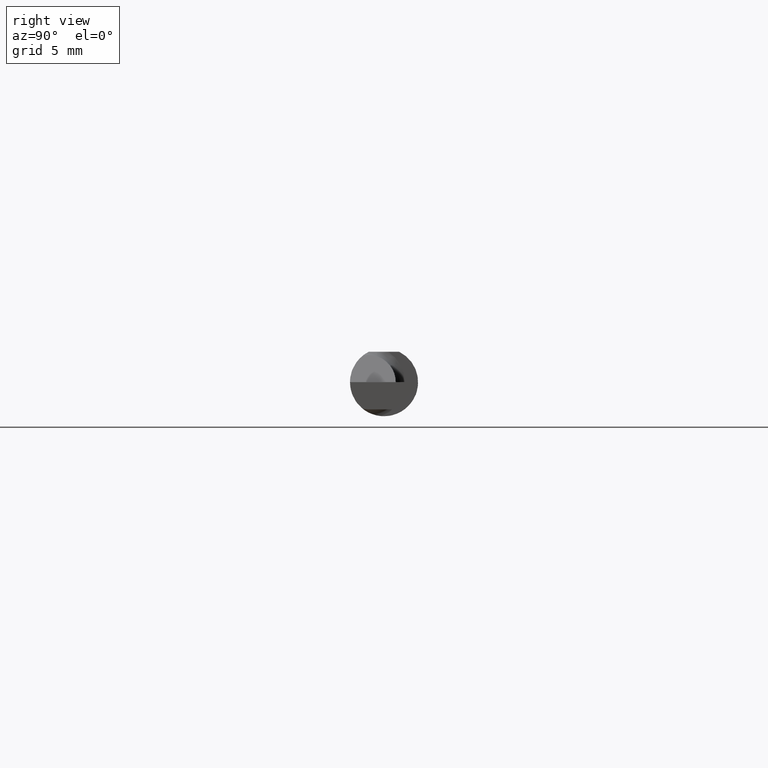
[diagram: clean part render]
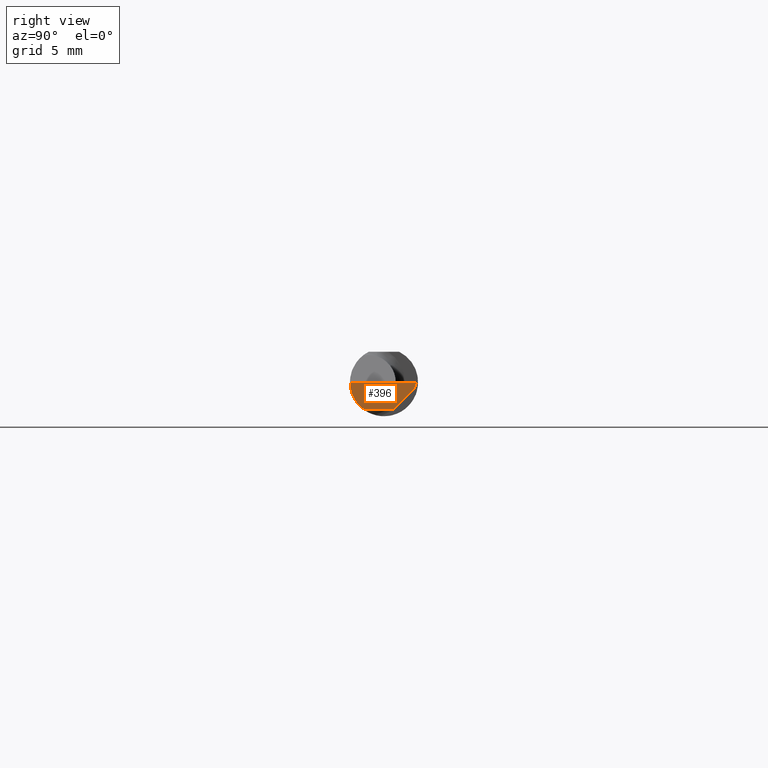
[diagram: same view with one face highlighted and labeled with its STEP entity id]
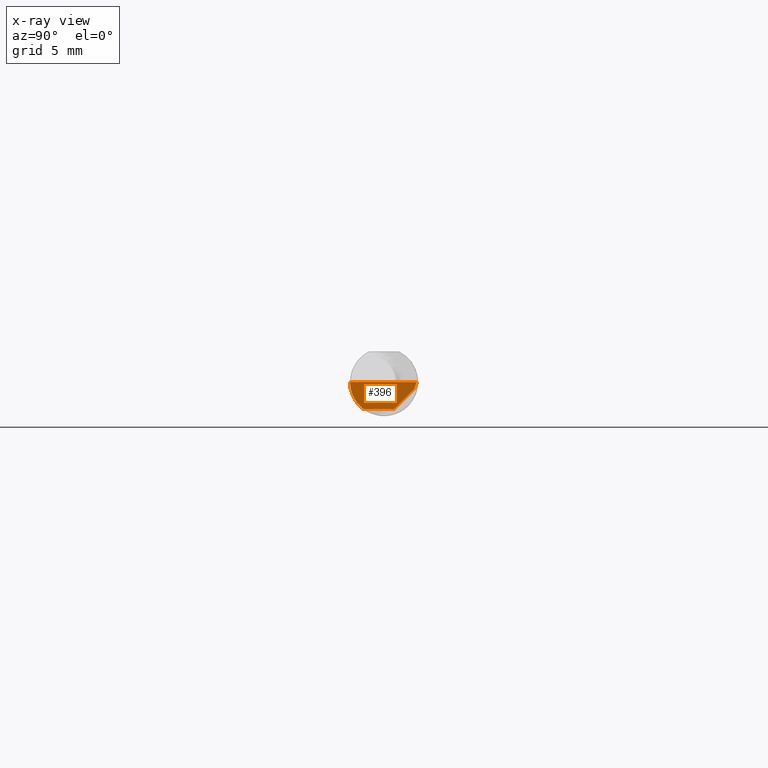
[diagram: x-ray of the same camera — body ghosted, the highlighted face saturated]
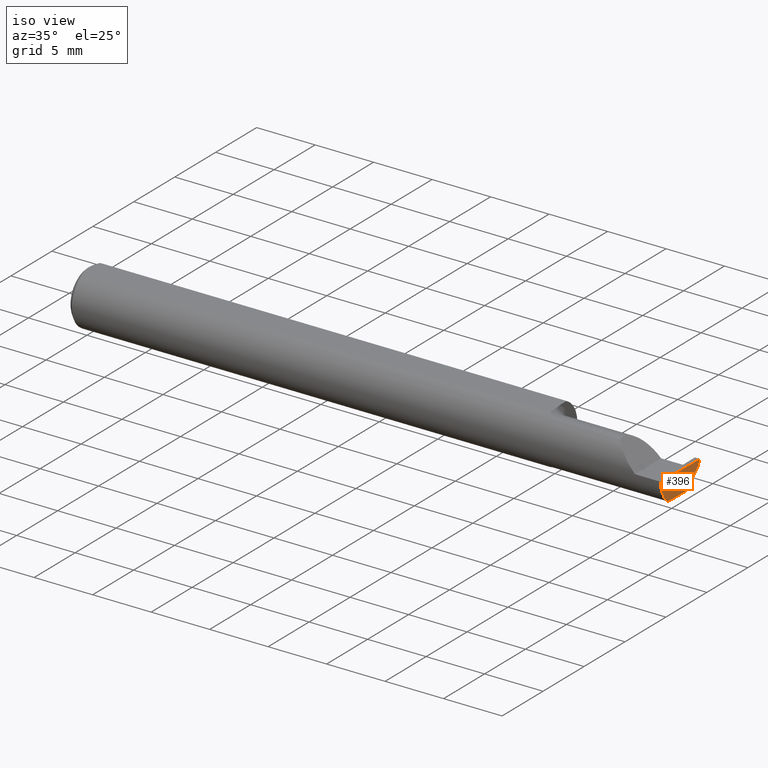
[diagram: same view with one face highlighted and labeled with its STEP entity id]
A machine part, right view. The second image highlights one B-rep face of the part: STEP entity #396.
The next image is the same camera in x-ray: the body ghosted, the highlighted face saturated — about 0% of this face is hidden behind the body in this view.
A second angle (iso view) of the same face is appended — the face is thin or edge-on in the first view.
In plain terms, the highlighted planar face has unit normal (-0.9995, 0.0174, 0.0262).
Its self-contained STEP definition (entity closure, byte-faithful):
#13 = CARTESIAN_POINT ( 'NONE',  ( 1.995546448166315878, -0.05323839212197382237, -0.07444895739054079031 ) ) ;
#25 = DIRECTION ( 'NONE',  ( 0.01744642479411314534, 0.9998477995484629233, -2.135106780035503491E-18 ) ) ;
#37 = CARTESIAN_POINT ( 'NONE',  ( 1.999906583493247902, 0.08920513411407893223, -0.002870745427926570548 ) ) ;
#85 = DIRECTION ( 'NONE',  ( 0.02617296143184116158, -0.0004568507411563393905, 0.9996573249755575929 ) ) ;
#87 = EDGE_CURVE ( 'NONE', #639, #136, #276, .T. ) ;
#107 = CARTESIAN_POINT ( 'NONE',  ( 1.995715029210241465, -0.04275000000000006573, -0.07500000000000002498 ) ) ;
#128 = CARTESIAN_POINT ( 'NONE',  ( 1.995715029210241465, -0.04275000000000006573, -0.07500000000000002498 ) ) ;
#136 = VERTEX_POINT ( 'NONE', #128 ) ;
#148 = VECTOR ( 'NONE', #591, 39.37007874015748854 ) ;
#167 = CARTESIAN_POINT ( 'NONE',  ( 1.995485408891350287, -0.05838157894736844405, -0.07335293954308980124 ) ) ;
#172 =( BOUNDED_CURVE ( )  B_SPLINE_CURVE ( 3, ( #246, #558, #300, #503 ),
 .UNSPECIFIED., .F., .T. ) 
 B_SPLINE_CURVE_WITH_KNOTS ( ( 4, 4 ),
 ( 0.08452019423454062985, 0.9826237902196911511 ),
 .UNSPECIFIED. ) 
 CURVE ( )  GEOMETRIC_REPRESENTATION_ITEM ( )  RATIONAL_B_SPLINE_CURVE ( ( 1.000000000000000000, 0.9339060884622309988, 0.9339060884622309988, 1.000000000000000000 ) ) 
 REPRESENTATION_ITEM ( '' )  );
#182 = CARTESIAN_POINT ( 'NONE',  ( 1.996681322863967711, -0.09994209213532713465, 4.064207332045267881E-19 ) ) ;
#186 = CARTESIAN_POINT ( 'NONE',  ( 1.999381723781206599, 0.08333456554894212720, -0.01900000000000000300 ) ) ;
#244 = EDGE_LOOP ( 'NONE', ( #282, #423, #286, #627, #509, #278, #615 ) ) ;
#246 = CARTESIAN_POINT ( 'NONE',  ( 1.995485408891350287, -0.05838157894736844405, -0.07335293954308980124 ) ) ;
#256 = DIRECTION ( 'NONE',  ( -0.03056411404777942264, -0.3418603543644915255, -0.9392536042231929283 ) ) ;
#266 = LINE ( 'NONE', #37, #646 ) ;
#268 = DIRECTION ( 'NONE',  ( -0.9995051766793262571, 0.01744044634007060890, 0.02617694830739122208 ) ) ;
#275 = VECTOR ( 'NONE', #25, 39.37007874015748854 ) ;
#276 = LINE ( 'NONE', #281, #148 ) ;
#278 = ORIENTED_EDGE ( 'NONE', *, *, #664, .F. ) ;
#280 = CARTESIAN_POINT ( 'NONE',  ( 2.000000000000000444, 0.09024999999999998301, -3.388131789017201356E-17 ) ) ;
#281 = CARTESIAN_POINT ( 'NONE',  ( 1.997443266634556291, 0.05629461264644371882, -0.07500000000000002498 ) ) ;
#282 = ORIENTED_EDGE ( 'NONE', *, *, #456, .T. ) ;
#286 = ORIENTED_EDGE ( 'NONE', *, *, #373, .F. ) ;
#287 = CARTESIAN_POINT ( 'NONE',  ( 1.994172072281005459, -0.09370431490906530603, -0.09996576130738767108 ) ) ;
#300 = CARTESIAN_POINT ( 'NONE',  ( 1.996027606133761179, -0.09373671316968848477, -0.02909498180803899575 ) ) ;
#347 = EDGE_CURVE ( 'NONE', #461, #597, #266, .T. ) ;
#371 =( BOUNDED_CURVE ( )  B_SPLINE_CURVE ( 3, ( #167, #13, #431, #107 ),
 .UNSPECIFIED., .F., .F. ) 
 B_SPLINE_CURVE_WITH_KNOTS ( ( 4, 4 ),
 ( 0.3777552489154321069, 0.5877155292608603476 ),
 .UNSPECIFIED. ) 
 CURVE ( )  GEOMETRIC_REPRESENTATION_ITEM ( )  RATIONAL_B_SPLINE_CURVE ( ( 1.000000000000000000, 0.9963297626697654730, 0.9963297626697654730, 1.000000000000000000 ) ) 
 REPRESENTATION_ITEM ( '' )  );
#373 = EDGE_CURVE ( 'NONE', #597, #639, #444, .T. ) ;
#375 = DIRECTION ( 'NONE',  ( 0.02618093032612054533, 0.000000000000000000, 0.9996572206948034500 ) ) ;
#380 = CARTESIAN_POINT ( 'NONE',  ( 1.996789369178486595, -0.09374999999634724135, 1.727064893179230389E-17 ) ) ;
#389 = CARTESIAN_POINT ( 'NONE',  ( 1.997382703856816377, 0.09029568507411561695, -0.09996573249755572044 ) ) ;
#396 = ADVANCED_FACE ( 'NONE', ( #492 ), #594, .F. ) ;
#409 = CARTESIAN_POINT ( 'NONE',  ( 1.996788247257474058, -0.09374999020988993015, -4.284443422834860931E-05 ) ) ;
#423 = ORIENTED_EDGE ( 'NONE', *, *, #87, .F. ) ;
#429 = CARTESIAN_POINT ( 'NONE',  ( 1.999287184445666998, 0.08116816941191071222, -0.02116639613703141104 ) ) ;
#431 = CARTESIAN_POINT ( 'NONE',  ( 1.995623270227810497, -0.04800867149029529324, -0.07499999999999998335 ) ) ;
#444 = LINE ( 'NONE', #429, #470 ) ;
#447 = AXIS2_PLACEMENT_3D ( 'NONE', #389, #268, #375 ) ;
#451 = LINE ( 'NONE', #182, #275 ) ;
#456 = EDGE_CURVE ( 'NONE', #643, #136, #371, .T. ) ;
#461 = VERTEX_POINT ( 'NONE', #280 ) ;
#470 = VECTOR ( 'NONE', #538, 39.37007874015748143 ) ;
#474 = VERTEX_POINT ( 'NONE', #380 ) ;
#492 = FACE_OUTER_BOUND ( 'NONE', #244, .T. ) ;
#502 = VERTEX_POINT ( 'NONE', #409 ) ;
#503 = CARTESIAN_POINT ( 'NONE',  ( 1.996788247257474058, -0.09374999020988993015, -4.284443422834860931E-05 ) ) ;
#509 = ORIENTED_EDGE ( 'NONE', *, *, #573, .F. ) ;
#538 = DIRECTION ( 'NONE',  ( -0.03084274406794415904, -0.7067703747110379853, -0.7067703747110360979 ) ) ;
#549 = LINE ( 'NONE', #287, #619 ) ;
#554 = CARTESIAN_POINT ( 'NONE',  ( 1.995485408891350287, -0.05838157894736844405, -0.07335293954308980124 ) ) ;
#558 = CARTESIAN_POINT ( 'NONE',  ( 1.995562592080699416, -0.08111288453585545344, -0.05526110136922310345 ) ) ;
#573 = EDGE_CURVE ( 'NONE', #474, #461, #451, .T. ) ;
#591 = DIRECTION ( 'NONE',  ( -0.01744642479411314534, -0.9998477995484629233, 0.000000000000000000 ) ) ;
#594 = PLANE ( 'NONE',  #447 ) ;
#597 = VERTEX_POINT ( 'NONE', #186 ) ;
#610 = CARTESIAN_POINT ( 'NONE',  ( 1.996937940439960757, 0.02733456554894195256, -0.07500000000000002498 ) ) ;
#615 = ORIENTED_EDGE ( 'NONE', *, *, #655, .F. ) ;
#619 = VECTOR ( 'NONE', #85, 39.37007874015748854 ) ;
#627 = ORIENTED_EDGE ( 'NONE', *, *, #347, .F. ) ;
#639 = VERTEX_POINT ( 'NONE', #610 ) ;
#643 = VERTEX_POINT ( 'NONE', #554 ) ;
#646 = VECTOR ( 'NONE', #256, 39.37007874015748854 ) ;
#655 = EDGE_CURVE ( 'NONE', #643, #502, #172, .T. ) ;
#664 = EDGE_CURVE ( 'NONE', #502, #474, #549, .T. ) ;